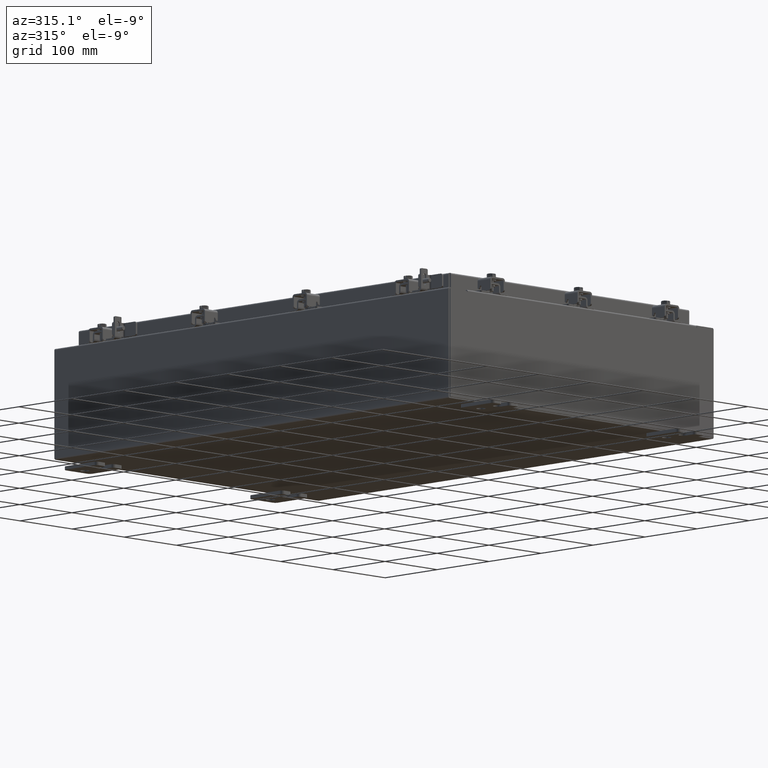
[diagram: clean part render]
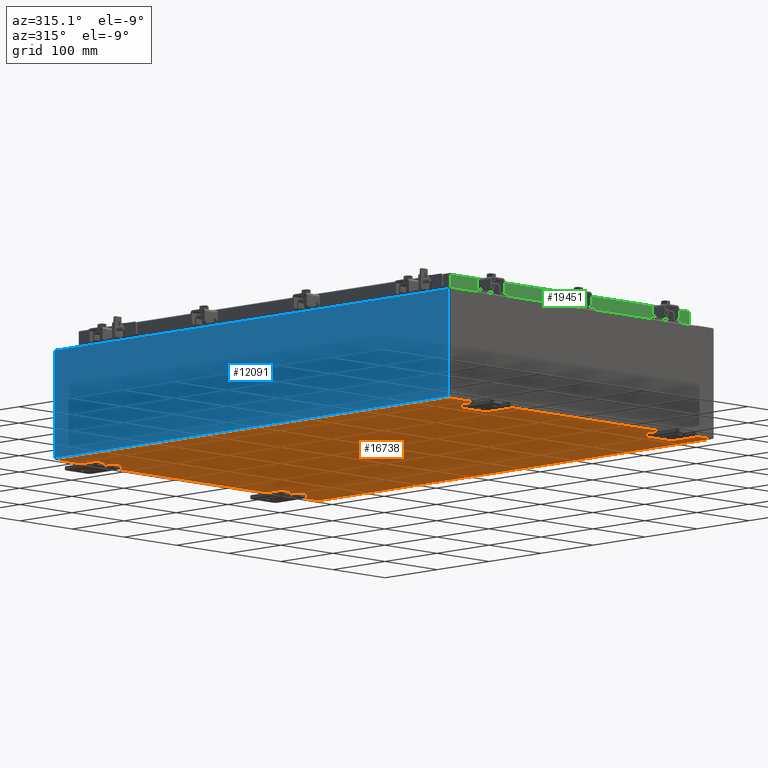
[diagram: same view with three faces highlighted in distinct colors, each labeled with its STEP entity id]
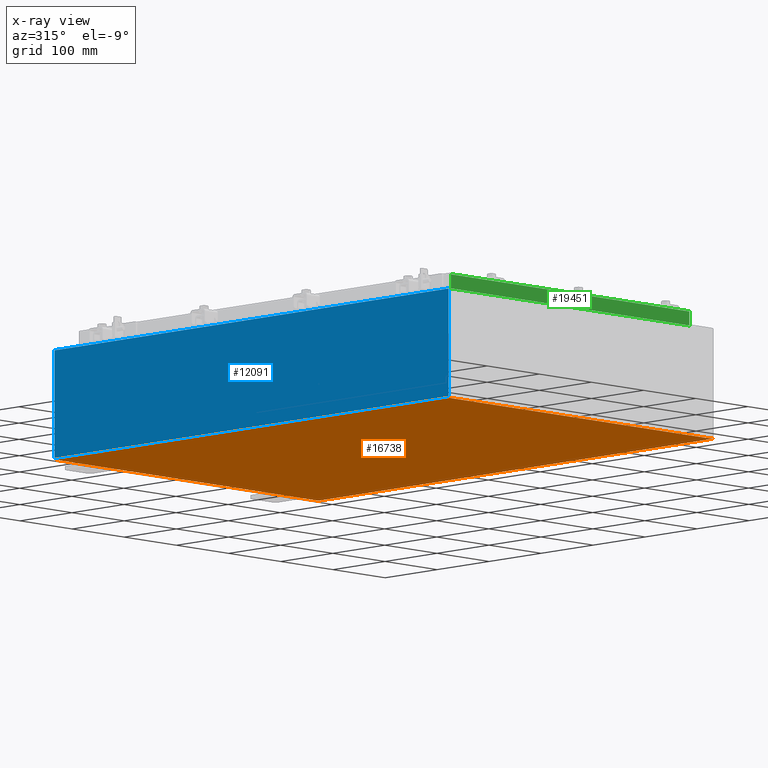
[diagram: x-ray of the same camera — body ghosted, the three highlighted faces saturated]
A machine part, auxiliary view with three faces highlighted in distinct colors.
The next image is the same camera in x-ray (body ghosted, the three faces saturated) — at least one of them is partly hidden behind the body in this view.
Their STEP definitions:

[orange] entity #16738 — the highlighted planar face has unit normal (0, 0, -1).
#486 = CARTESIAN_POINT ( 'NONE',  ( 9.912300000000000100, 14.92530000000000500, -0.07469999999999994700 ) ) ;
#758 = DIRECTION ( 'NONE',  ( -1.000000000000000000, -0.0000000000000000000, -0.0000000000000000000 ) ) ;
#2599 = VERTEX_POINT ( 'NONE', #10128 ) ;
#4489 = ORIENTED_EDGE ( 'NONE', *, *, #11234, .F. ) ;
#4641 = ORIENTED_EDGE ( 'NONE', *, *, #5040, .T. ) ;
#4766 = DIRECTION ( 'NONE',  ( -1.000000000000000000, 0.0000000000000000000, -0.0000000000000000000 ) ) ;
#4785 = EDGE_CURVE ( 'NONE', #2599, #8484, #7564, .T. ) ;
#5040 = EDGE_CURVE ( 'NONE', #2599, #19696, #12038, .T. ) ;
#5515 = DIRECTION ( 'NONE',  ( 1.000000000000000000, 0.0000000000000000000, 0.0000000000000000000 ) ) ;
#7564 = LINE ( 'NONE', #12631, #17608 ) ;
#8269 = PLANE ( 'NONE',  #15223 ) ;
#8484 = VERTEX_POINT ( 'NONE', #19957 ) ;
#8487 = ORIENTED_EDGE ( 'NONE', *, *, #15826, .T. ) ;
#9091 = CARTESIAN_POINT ( 'NONE',  ( -9.912300000000000100, 14.92530000000000500, -0.07470000000000000300 ) ) ;
#9881 = CARTESIAN_POINT ( 'NONE',  ( -9.912300000000000100, -14.92529999999999600, -0.07469999999999994700 ) ) ;
#10128 = CARTESIAN_POINT ( 'NONE',  ( -9.912300000000000100, -14.92529999999999600, -0.07469999999999994700 ) ) ;
#11234 = EDGE_CURVE ( 'NONE', #14312, #19696, #12125, .T. ) ;
#12038 = LINE ( 'NONE', #9881, #12585 ) ;
#12125 = LINE ( 'NONE', #13259, #16306 ) ;
#12585 = VECTOR ( 'NONE', #22394, 39.37007874015748100 ) ;
#12631 = CARTESIAN_POINT ( 'NONE',  ( -10.00000000000000000, -14.92529999999999600, -0.07470000000000000300 ) ) ;
#13002 = DIRECTION ( 'NONE',  ( -0.0000000000000000000, -1.000000000000000000, -0.0000000000000000000 ) ) ;
#13259 = CARTESIAN_POINT ( 'NONE',  ( -10.00000000000000000, 14.92530000000000500, -0.07470000000000000300 ) ) ;
#13286 = LINE ( 'NONE', #486, #18011 ) ;
#14312 = VERTEX_POINT ( 'NONE', #23005 ) ;
#15223 = AXIS2_PLACEMENT_3D ( 'NONE', #18969, #15479, #4766 ) ;
#15479 = DIRECTION ( 'NONE',  ( 0.0000000000000000000, 0.0000000000000000000, -1.000000000000000000 ) ) ;
#15815 = ORIENTED_EDGE ( 'NONE', *, *, #4785, .F. ) ;
#15826 = EDGE_CURVE ( 'NONE', #14312, #8484, #13286, .T. ) ;
#16306 = VECTOR ( 'NONE', #758, 39.37007874015748100 ) ;
#16738 = ADVANCED_FACE ( 'NONE', ( #20789 ), #8269, .T. ) ;
#17608 = VECTOR ( 'NONE', #5515, 39.37007874015748100 ) ;
#18011 = VECTOR ( 'NONE', #13002, 39.37007874015748100 ) ;
#18969 = CARTESIAN_POINT ( 'NONE',  ( 0.0000000000000000000, 0.0000000000000000000, -0.07470000000000000300 ) ) ;
#19441 = EDGE_LOOP ( 'NONE', ( #15815, #4641, #4489, #8487 ) ) ;
#19696 = VERTEX_POINT ( 'NONE', #9091 ) ;
#19957 = CARTESIAN_POINT ( 'NONE',  ( 9.912300000000000100, -14.92529999999999600, -0.07470000000000000300 ) ) ;
#20789 = FACE_OUTER_BOUND ( 'NONE', #19441, .T. ) ;
#22394 = DIRECTION ( 'NONE',  ( -0.0000000000000000000, 1.000000000000000000, -0.0000000000000000000 ) ) ;
#23005 = CARTESIAN_POINT ( 'NONE',  ( 9.912300000000000100, 14.92530000000000500, -0.07469999999999994700 ) ) ;

[blue] entity #12091 — the highlighted planar face has unit normal (1, 0, 0).
#3746 = EDGE_CURVE ( 'NONE', #9396, #8740, #9398, .T. ) ;
#4057 = DIRECTION ( 'NONE',  ( -0.0000000000000000000, 1.000000000000000000, -0.0000000000000000000 ) ) ;
#4652 = DIRECTION ( 'NONE',  ( 1.000000000000000000, 0.0000000000000000000, 3.319545939341922800E-015 ) ) ;
#5157 = VERTEX_POINT ( 'NONE', #22633 ) ;
#5177 = EDGE_CURVE ( 'NONE', #5157, #20817, #5583, .T. ) ;
#5583 = LINE ( 'NONE', #6606, #9213 ) ;
#5676 = CARTESIAN_POINT ( 'NONE',  ( -10.00000000000001800, -14.92529999999999600, 5.837599999999999200 ) ) ;
#5809 = ORIENTED_EDGE ( 'NONE', *, *, #13883, .F. ) ;
#6606 = CARTESIAN_POINT ( 'NONE',  ( -10.00000000000000000, -14.92529999999999600, -3.345627304943080600E-014 ) ) ;
#8230 = CARTESIAN_POINT ( 'NONE',  ( -10.00000000000000000, 14.92530000000000500, 0.01299999999999985900 ) ) ;
#8339 = CARTESIAN_POINT ( 'NONE',  ( -10.00000000000000000, 14.92530000000000500, -3.345627304943080600E-014 ) ) ;
#8458 = VECTOR ( 'NONE', #18164, 39.37007874015748100 ) ;
#8740 = VERTEX_POINT ( 'NONE', #8230 ) ;
#8828 = VECTOR ( 'NONE', #17252, 39.37007874015748100 ) ;
#9016 = ORIENTED_EDGE ( 'NONE', *, *, #13809, .T. ) ;
#9213 = VECTOR ( 'NONE', #20907, 39.37007874015748100 ) ;
#9396 = VERTEX_POINT ( 'NONE', #10454 ) ;
#9398 = LINE ( 'NONE', #8339, #8828 ) ;
#10454 = CARTESIAN_POINT ( 'NONE',  ( -10.00000000000002000, 14.92530000000000500, 5.837599999999999200 ) ) ;
#12091 = ADVANCED_FACE ( 'NONE', ( #20288 ), #13466, .F. ) ;
#12111 = LINE ( 'NONE', #5676, #8458 ) ;
#13466 = PLANE ( 'NONE',  #14770 ) ;
#13809 = EDGE_CURVE ( 'NONE', #20817, #9396, #12111, .T. ) ;
#13883 = EDGE_CURVE ( 'NONE', #5157, #8740, #21037, .T. ) ;
#14758 = CARTESIAN_POINT ( 'NONE',  ( -10.00000000000000000, 14.92530000000000500, 0.01299999999999986400 ) ) ;
#14770 = AXIS2_PLACEMENT_3D ( 'NONE', #22453, #4652, #17121 ) ;
#17121 = DIRECTION ( 'NONE',  ( 3.319545939341922800E-015, 0.0000000000000000000, -1.000000000000000000 ) ) ;
#17252 = DIRECTION ( 'NONE',  ( 3.319545939341922800E-015, 0.0000000000000000000, -1.000000000000000000 ) ) ;
#17446 = ORIENTED_EDGE ( 'NONE', *, *, #5177, .T. ) ;
#17519 = EDGE_LOOP ( 'NONE', ( #9016, #23023, #5809, #17446 ) ) ;
#18164 = DIRECTION ( 'NONE',  ( 0.0000000000000000000, 1.000000000000000000, 0.0000000000000000000 ) ) ;
#19936 = CARTESIAN_POINT ( 'NONE',  ( -10.00000000000001800, -14.92529999999999600, 5.837599999999999200 ) ) ;
#20288 = FACE_OUTER_BOUND ( 'NONE', #17519, .T. ) ;
#20483 = VECTOR ( 'NONE', #4057, 39.37007874015748100 ) ;
#20817 = VERTEX_POINT ( 'NONE', #19936 ) ;
#20907 = DIRECTION ( 'NONE',  ( -3.319545939341922800E-015, 0.0000000000000000000, 1.000000000000000000 ) ) ;
#21037 = LINE ( 'NONE', #14758, #20483 ) ;
#22453 = CARTESIAN_POINT ( 'NONE',  ( -10.00000000000000000, 0.0000000000000000000, -3.345627304943080600E-014 ) ) ;
#22633 = CARTESIAN_POINT ( 'NONE',  ( -10.00000000000000000, -14.92529999999999600, 0.01299999999999986400 ) ) ;
#23023 = ORIENTED_EDGE ( 'NONE', *, *, #3746, .T. ) ;

[green] entity #19451 — the highlighted planar face has unit normal (0, 1, -0).
#1341 = ORIENTED_EDGE ( 'NONE', *, *, #19592, .F. ) ;
#1346 = VECTOR ( 'NONE', #16144, 39.37007874015748100 ) ;
#1469 = CARTESIAN_POINT ( 'NONE',  ( 8.239157864376268800, -14.09399999999999900, -0.8500000000000006400 ) ) ;
#1483 = EDGE_CURVE ( 'NONE', #2699, #9653, #15377, .T. ) ;
#2343 = VECTOR ( 'NONE', #11799, 39.37007874015748100 ) ;
#2699 = VERTEX_POINT ( 'NONE', #1469 ) ;
#2731 = CARTESIAN_POINT ( 'NONE',  ( 8.239157864376270600, -14.09399999999999900, -0.8500000000000006400 ) ) ;
#2832 = VECTOR ( 'NONE', #5295, 39.37007874015748100 ) ;
#2862 = EDGE_CURVE ( 'NONE', #19136, #4333, #20347, .T. ) ;
#3560 = AXIS2_PLACEMENT_3D ( 'NONE', #4966, #17447, #6747 ) ;
#3753 = LINE ( 'NONE', #13299, #16324 ) ;
#4333 = VERTEX_POINT ( 'NONE', #14989 ) ;
#4966 = CARTESIAN_POINT ( 'NONE',  ( -1.696526354822824800E-015, -14.09399999999999900, 3.999012166344521600E-014 ) ) ;
#5295 = DIRECTION ( 'NONE',  ( 0.0000000000000000000, -2.818880942772360100E-015, -1.000000000000000000 ) ) ;
#6747 = DIRECTION ( 'NONE',  ( 0.0000000000000000000, 2.818880942772360100E-015, 1.000000000000000000 ) ) ;
#7164 = ORIENTED_EDGE ( 'NONE', *, *, #16718, .F. ) ;
#8651 = ORIENTED_EDGE ( 'NONE', *, *, #1483, .F. ) ;
#9029 = CARTESIAN_POINT ( 'NONE',  ( -8.989157864376265300, -14.09399999999999900, 3.999012166344521600E-014 ) ) ;
#9367 = CARTESIAN_POINT ( 'NONE',  ( -8.239157864376263500, -14.09399999999999900, -0.8500000000000006400 ) ) ;
#9653 = VERTEX_POINT ( 'NONE', #9367 ) ;
#10459 = VERTEX_POINT ( 'NONE', #22472 ) ;
#10580 = VECTOR ( 'NONE', #12873, 39.37007874015748100 ) ;
#10911 = VECTOR ( 'NONE', #16045, 39.37007874015748100 ) ;
#11486 = LINE ( 'NONE', #14237, #10911 ) ;
#11549 = ORIENTED_EDGE ( 'NONE', *, *, #2862, .T. ) ;
#11799 = DIRECTION ( 'NONE',  ( -1.000000000000000000, 1.203722403024570700E-016, 1.203722403024571000E-016 ) ) ;
#12077 = PLANE ( 'NONE',  #3560 ) ;
#12873 = DIRECTION ( 'NONE',  ( -1.000000000000000000, 0.0000000000000000000, 0.0000000000000000000 ) ) ;
#13299 = CARTESIAN_POINT ( 'NONE',  ( 9.078000000000001200, -14.09400000000000300, -0.8499999999999996400 ) ) ;
#13484 = ORIENTED_EDGE ( 'NONE', *, *, #15114, .F. ) ;
#13609 = CARTESIAN_POINT ( 'NONE',  ( 9.078000000000001200, -14.09400000000000300, -0.8499999999999996400 ) ) ;
#14237 = CARTESIAN_POINT ( 'NONE',  ( 9.078000000000001200, -14.09400000000000100, -0.08770000000000007000 ) ) ;
#14812 = CARTESIAN_POINT ( 'NONE',  ( -8.989157864376265300, -14.09399999999999900, -0.08770000000000007000 ) ) ;
#14989 = CARTESIAN_POINT ( 'NONE',  ( -8.989157864376265300, -14.09400000000000100, -0.8499999999999975400 ) ) ;
#15114 = EDGE_CURVE ( 'NONE', #10459, #19068, #17068, .T. ) ;
#15377 = LINE ( 'NONE', #2731, #10580 ) ;
#16045 = DIRECTION ( 'NONE',  ( 1.000000000000000000, -1.203722403024567300E-016, -9.633926942233120500E-046 ) ) ;
#16144 = DIRECTION ( 'NONE',  ( 0.0000000000000000000, -2.818880942772360100E-015, -1.000000000000000000 ) ) ;
#16324 = VECTOR ( 'NONE', #18594, 39.37007874015748100 ) ;
#16460 = EDGE_CURVE ( 'NONE', #9653, #4333, #3753, .T. ) ;
#16718 = EDGE_CURVE ( 'NONE', #19068, #2699, #21330, .T. ) ;
#17068 = LINE ( 'NONE', #19604, #2832 ) ;
#17350 = FACE_OUTER_BOUND ( 'NONE', #21197, .T. ) ;
#17447 = DIRECTION ( 'NONE',  ( 1.203722403024567300E-016, 1.000000000000000000, -2.818880942772360100E-015 ) ) ;
#18594 = DIRECTION ( 'NONE',  ( -1.000000000000000000, 1.203722403024570700E-016, 1.203722403024571000E-016 ) ) ;
#19068 = VERTEX_POINT ( 'NONE', #21839 ) ;
#19136 = VERTEX_POINT ( 'NONE', #14812 ) ;
#19451 = ADVANCED_FACE ( 'NONE', ( #17350 ), #12077, .F. ) ;
#19592 = EDGE_CURVE ( 'NONE', #19136, #10459, #11486, .T. ) ;
#19604 = CARTESIAN_POINT ( 'NONE',  ( 8.989157864376270600, -14.09400000000000100, -0.07469999999999978000 ) ) ;
#20347 = LINE ( 'NONE', #9029, #1346 ) ;
#21197 = EDGE_LOOP ( 'NONE', ( #1341, #11549, #21353, #8651, #7164, #13484 ) ) ;
#21330 = LINE ( 'NONE', #13609, #2343 ) ;
#21353 = ORIENTED_EDGE ( 'NONE', *, *, #16460, .F. ) ;
#21839 = CARTESIAN_POINT ( 'NONE',  ( 8.989157864376270600, -14.09400000000000300, -0.8499999999999996400 ) ) ;
#22472 = CARTESIAN_POINT ( 'NONE',  ( 8.989157864376256400, -14.09400000000000100, -0.08770000000000007000 ) ) ;